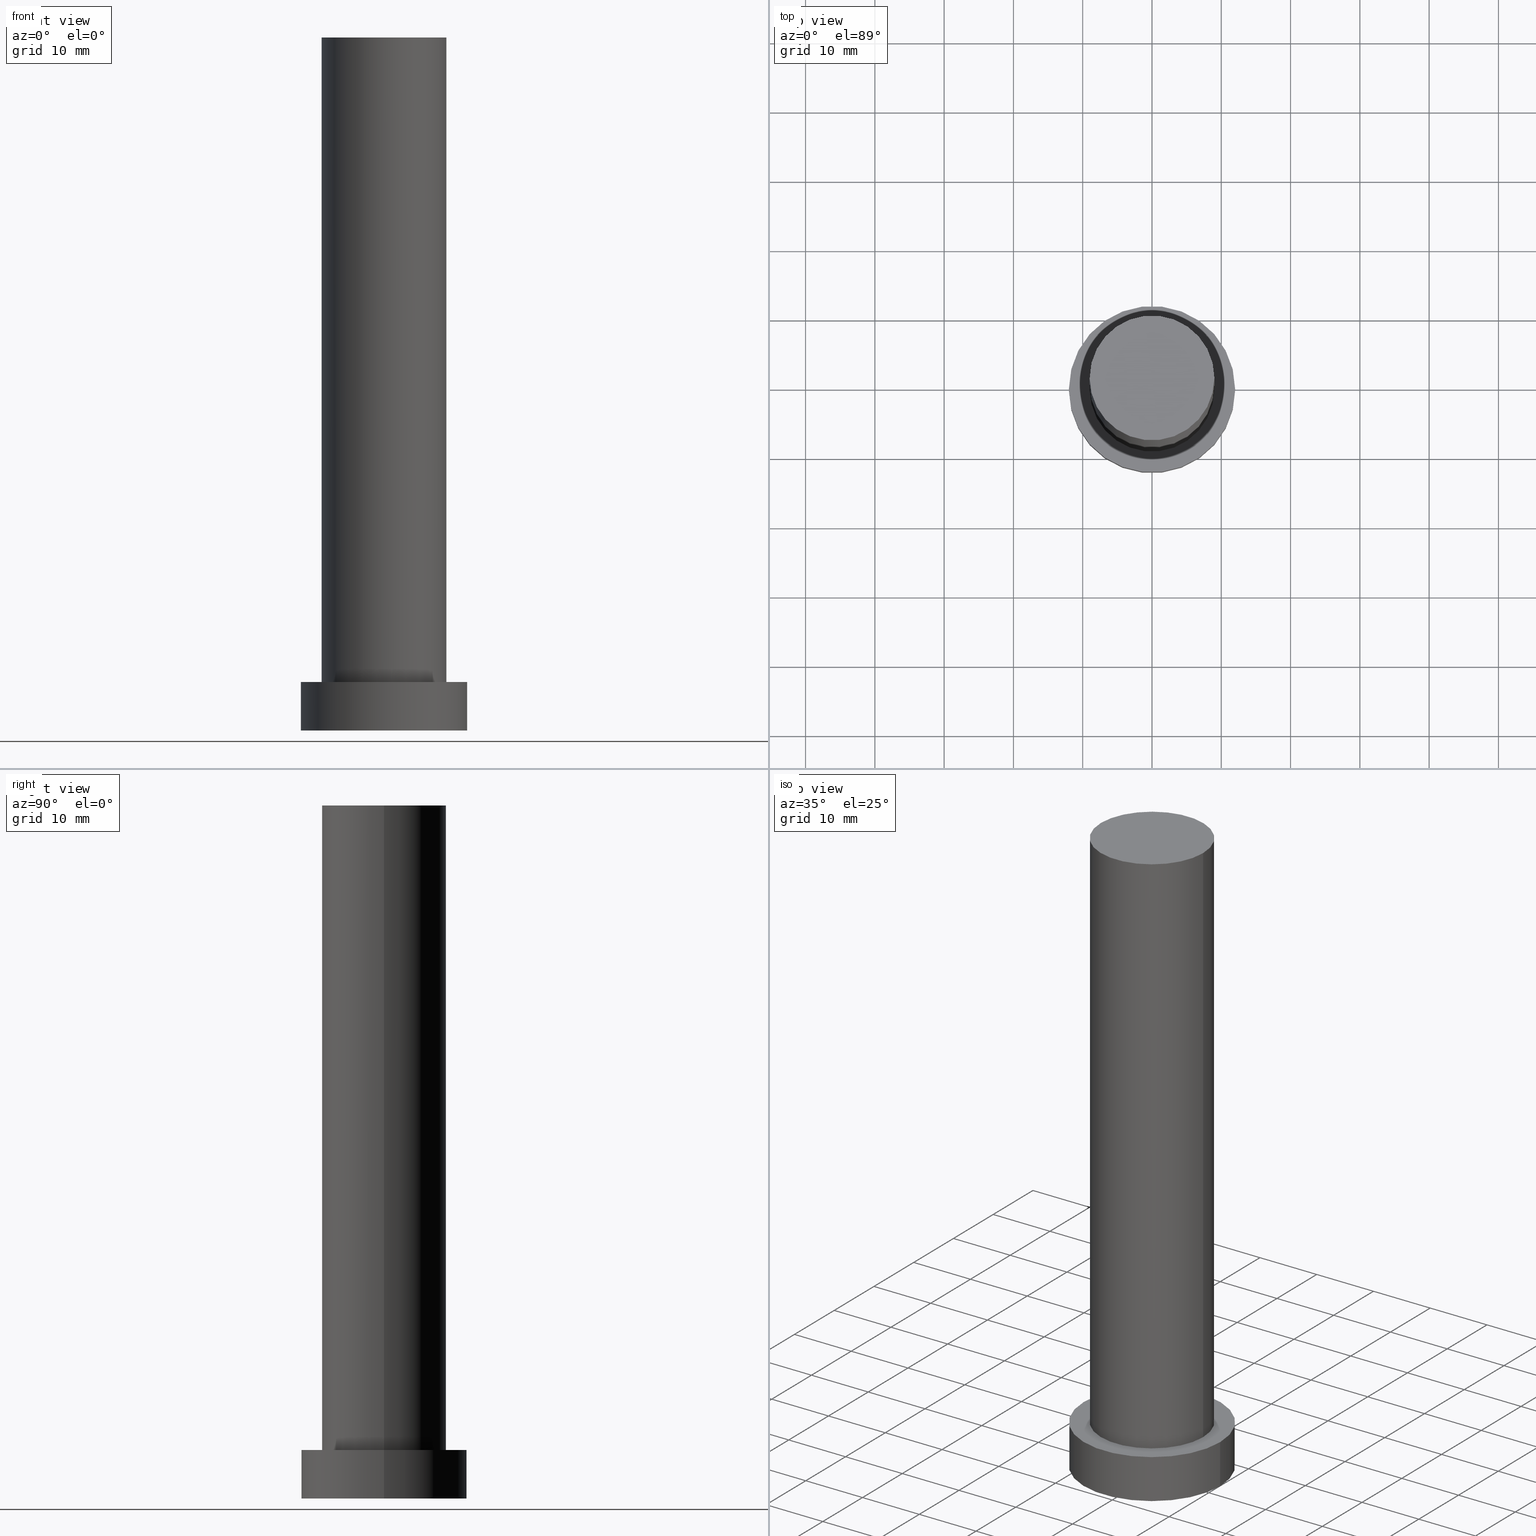
[diagram: canonical four-view strip — front | top / right | iso, engineering-drawing reading convention]
A machine part, canonical four-view strip (front | top / right | iso — engineering-drawing reading convention). The complete STEP part file that produces these views, byte-faithful:
ISO-10303-21;
HEADER;
FILE_DESCRIPTION (( 'STEP AP203' ),
    '1' );
FILE_NAME ('31d9.STEP',
    '2023-02-13T07:36:37',
    ( '' ),
    ( '' ),
    'SwSTEP 2.0',
    'SolidWorks 2019',
    '' );
FILE_SCHEMA (( 'CONFIG_CONTROL_DESIGN' ));
ENDSEC;

DATA;
#1 = APPROVAL_STATUS ( 'not_yet_approved' ) ;
#2 = CARTESIAN_POINT ( 'NONE',  ( 0.000000000000000000, 0.000000000000000000, 0.000000000000000000 ) ) ;
#3 = EDGE_CURVE ( 'NONE', #214, #246, #176, .T. ) ;
#4 = DIRECTION ( 'NONE',  ( -1.000000000000000000, 0.000000000000000000, 0.000000000000000000 ) ) ;
#5 = PERSON_AND_ORGANIZATION ( #134, #232 ) ;
#6 = CARTESIAN_POINT ( 'NONE',  ( -12.00000000000000178, 0.000000000000000000, 0.000000000000000000 ) ) ;
#7 = EDGE_LOOP ( 'NONE', ( #251, #196, #198, #211 ) ) ;
#8 = CIRCLE ( 'NONE', #39, 9.000000000000000000 ) ;
#9 = DIRECTION ( 'NONE',  ( 0.000000000000000000, 0.000000000000000000, 1.000000000000000000 ) ) ;
#10 = CYLINDRICAL_SURFACE ( 'NONE', #252, 12.00000000000000178 ) ;
#11 = SECURITY_CLASSIFICATION_LEVEL ( 'unclassified' ) ;
#12 = CC_DESIGN_PERSON_AND_ORGANIZATION_ASSIGNMENT ( #5, #148, ( #141 ) ) ;
#13 = CC_DESIGN_SECURITY_CLASSIFICATION ( #50, ( #141 ) ) ;
#14 = ORIENTED_EDGE ( 'NONE', *, *, #57, .F. ) ;
#15 = FACE_OUTER_BOUND ( 'NONE', #7, .T. ) ;
#16 = AXIS2_PLACEMENT_3D ( 'NONE', #164, #233, #145 ) ;
#17 = APPROVAL_PERSON_ORGANIZATION ( #43, #132, #21 ) ;
#18 = CARTESIAN_POINT ( 'NONE',  ( 0.000000000000000000, 0.000000000000000000, 100.0000000000000000 ) ) ;
#19 = PERSON_AND_ORGANIZATION ( #134, #232 ) ;
#20 = DATE_TIME_ROLE ( 'creation_date' ) ;
#21 = APPROVAL_ROLE ( '' ) ;
#22 = PLANE ( 'NONE',  #224 ) ;
#23 = ADVANCED_FACE ( 'NONE', ( #15 ), #236, .T. ) ;
#24 = CALENDAR_DATE ( 2023, 13, 2 ) ;
#25 = CARTESIAN_POINT ( 'NONE',  ( 0.000000000000000000, 0.000000000000000000, 0.000000000000000000 ) ) ;
#26 = PERSON_AND_ORGANIZATION ( #134, #232 ) ;
#27 =( LENGTH_UNIT ( ) NAMED_UNIT ( * ) SI_UNIT ( .MILLI., .METRE. ) );
#28 = DIRECTION ( 'NONE',  ( 0.000000000000000000, 0.000000000000000000, 1.000000000000000000 ) ) ;
#29 = VECTOR ( 'NONE', #121, 1000.000000000000000 ) ;
#30 = ORIENTED_EDGE ( 'NONE', *, *, #223, .T. ) ;
#31 = ADVANCED_FACE ( 'NONE', ( #248 ), #10, .T. ) ;
#32 = ORIENTED_EDGE ( 'NONE', *, *, #133, .F. ) ;
#33 = AXIS2_PLACEMENT_3D ( 'NONE', #108, #84, #172 ) ;
#34 = CARTESIAN_POINT ( 'NONE',  ( 0.000000000000000000, 0.000000000000000000, 7.000000000000000000 ) ) ;
#35 = CC_DESIGN_DATE_AND_TIME_ASSIGNMENT ( #94, #182, ( #50 ) ) ;
#36 = ORIENTED_EDGE ( 'NONE', *, *, #159, .T. ) ;
#37 = DIRECTION ( 'NONE',  ( 1.000000000000000000, 0.000000000000000000, 0.000000000000000000 ) ) ;
#38 = APPROVAL_PERSON_ORGANIZATION ( #19, #60, #185 ) ;
#39 = AXIS2_PLACEMENT_3D ( 'NONE', #241, #112, #184 ) ;
#40 = COORDINATED_UNIVERSAL_TIME_OFFSET ( 1, 0, .AHEAD. ) ;
#41 = PLANE ( 'NONE',  #102 ) ;
#42 = CC_DESIGN_PERSON_AND_ORGANIZATION_ASSIGNMENT ( #26, #146, ( #218 ) ) ;
#43 = PERSON_AND_ORGANIZATION ( #134, #232 ) ;
#44 = CARTESIAN_POINT ( 'NONE',  ( 0.000000000000000000, 0.000000000000000000, 7.000000000000000000 ) ) ;
#45 = APPROVAL_STATUS ( 'not_yet_approved' ) ;
#46 = DATE_AND_TIME ( #201, #226 ) ;
#47 = DIRECTION ( 'NONE',  ( 1.000000000000000000, 0.000000000000000000, -0.000000000000000000 ) ) ;
#48 = CARTESIAN_POINT ( 'NONE',  ( 0.000000000000000000, 0.000000000000000000, 100.0000000000000000 ) ) ;
#49 = ADVANCED_FACE ( 'NONE', ( #144 ), #175, .T. ) ;
#50 = SECURITY_CLASSIFICATION ( '', '', #11 ) ;
#51 = EDGE_CURVE ( 'NONE', #217, #214, #92, .T. ) ;
#52 = APPLICATION_PROTOCOL_DEFINITION ( 'international standard', 'config_control_design', 1994, #88 ) ;
#53 = PRODUCT_DEFINITION_SHAPE ( 'NONE', 'NONE',  #186 ) ;
#54 = ORIENTED_EDGE ( 'NONE', *, *, #93, .T. ) ;
#55 = VERTEX_POINT ( 'NONE', #59 ) ;
#56 = ORIENTED_EDGE ( 'NONE', *, *, #3, .T. ) ;
#57 = EDGE_CURVE ( 'NONE', #214, #217, #8, .T. ) ;
#58 = CC_DESIGN_PERSON_AND_ORGANIZATION_ASSIGNMENT ( #213, #122, ( #141 ) ) ;
#59 = CARTESIAN_POINT ( 'NONE',  ( 12.00000000000000178, 1.469576158976824144E-15, 7.000000000000000000 ) ) ;
#60 = APPROVAL ( #221, 'NEUR�EN�' ) ;
#61 = PERSON_AND_ORGANIZATION ( #134, #232 ) ;
#62 = CIRCLE ( 'NONE', #16, 12.00000000000000178 ) ;
#63 = EDGE_CURVE ( 'NONE', #55, #169, #77, .T. ) ;
#64 = APPROVAL_PERSON_ORGANIZATION ( #61, #173, #79 ) ;
#65 = DIRECTION ( 'NONE',  ( 0.000000000000000000, 0.000000000000000000, 1.000000000000000000 ) ) ;
#66 = COORDINATED_UNIVERSAL_TIME_OFFSET ( 1, 0, .AHEAD. ) ;
#67 = DIRECTION ( 'NONE',  ( 1.000000000000000000, 0.000000000000000000, 0.000000000000000000 ) ) ;
#68 = CARTESIAN_POINT ( 'NONE',  ( -9.000000000000000000, 0.000000000000000000, 100.0000000000000000 ) ) ;
#69 = ORIENTED_EDGE ( 'NONE', *, *, #235, .F. ) ;
#70 = DIRECTION ( 'NONE',  ( 0.000000000000000000, 0.000000000000000000, 1.000000000000000000 ) ) ;
#71 = DIRECTION ( 'NONE',  ( -1.000000000000000000, 0.000000000000000000, 0.000000000000000000 ) ) ;
#72 = VERTEX_POINT ( 'NONE', #153 ) ;
#73 = ADVANCED_FACE ( 'NONE', ( #254 ), #156, .T. ) ;
#74 = ORIENTED_EDGE ( 'NONE', *, *, #51, .T. ) ;
#75 = VECTOR ( 'NONE', #96, 1000.000000000000000 ) ;
#76 = CLOSED_SHELL ( 'NONE', ( #23, #31, #49, #174, #143, #73, #91 ) ) ;
#77 = LINE ( 'NONE', #137, #75 ) ;
#78 = DIRECTION ( 'NONE',  ( -0.000000000000000000, -0.000000000000000000, -1.000000000000000000 ) ) ;
#79 = APPROVAL_ROLE ( '' ) ;
#80 = DIRECTION ( 'NONE',  ( 0.000000000000000000, 0.000000000000000000, 1.000000000000000000 ) ) ;
#81 = VERTEX_POINT ( 'NONE', #161 ) ;
#82 = CARTESIAN_POINT ( 'NONE',  ( -9.000000000000000000, 0.000000000000000000, 7.000000000000000000 ) ) ;
#83 = FACE_BOUND ( 'NONE', #152, .T. ) ;
#84 = DIRECTION ( 'NONE',  ( 0.000000000000000000, 0.000000000000000000, 1.000000000000000000 ) ) ;
#85 = AXIS2_PLACEMENT_3D ( 'NONE', #181, #135, #37 ) ;
#86 = CIRCLE ( 'NONE', #157, 12.00000000000000178 ) ;
#87 = DIRECTION ( 'NONE',  ( -0.000000000000000000, -0.000000000000000000, -1.000000000000000000 ) ) ;
#88 = APPLICATION_CONTEXT ( 'configuration controlled 3d designs of mechanical parts and assemblies' ) ;
#89 = EDGE_LOOP ( 'NONE', ( #177, #14, #56, #36 ) ) ;
#90 = CARTESIAN_POINT ( 'NONE',  ( 0.000000000000000000, 0.000000000000000000, 7.000000000000000000 ) ) ;
#91 = ADVANCED_FACE ( 'NONE', ( #167 ), #41, .T. ) ;
#92 = CIRCLE ( 'NONE', #85, 9.000000000000000000 ) ;
#93 = EDGE_CURVE ( 'NONE', #55, #81, #250, .T. ) ;
#94 = DATE_AND_TIME ( #242, #150 ) ;
#95 = DATE_AND_TIME ( #24, #162 ) ;
#96 = DIRECTION ( 'NONE',  ( -0.000000000000000000, -0.000000000000000000, -1.000000000000000000 ) ) ;
#97 = FACE_OUTER_BOUND ( 'NONE', #130, .T. ) ;
#98 = DIRECTION ( 'NONE',  ( 1.000000000000000000, 0.000000000000000000, 0.000000000000000000 ) ) ;
#99 = DATE_AND_TIME ( #207, #136 ) ;
#100 = CARTESIAN_POINT ( 'NONE',  ( 9.000000000000000000, 1.102182119232617517E-15, 100.0000000000000000 ) ) ;
#101 = DIRECTION ( 'NONE',  ( 0.000000000000000000, 0.000000000000000000, 1.000000000000000000 ) ) ;
#102 = AXIS2_PLACEMENT_3D ( 'NONE', #117, #80, #171 ) ;
#103 = DIRECTION ( 'NONE',  ( 1.000000000000000000, 0.000000000000000000, -0.000000000000000000 ) ) ;
#104 = DIRECTION ( 'NONE',  ( -0.000000000000000000, -0.000000000000000000, -1.000000000000000000 ) ) ;
#105 = CIRCLE ( 'NONE', #180, 9.000000000000000000 ) ;
#106 = EDGE_CURVE ( 'NONE', #217, #72, #194, .T. ) ;
#107 = CC_DESIGN_APPROVAL ( #132, ( #186 ) ) ;
#108 = CARTESIAN_POINT ( 'NONE',  ( 0.000000000000000000, 0.000000000000000000, 0.000000000000000000 ) ) ;
#109 = EDGE_LOOP ( 'NONE', ( #208, #215, #30, #32 ) ) ;
#110 = ORIENTED_EDGE ( 'NONE', *, *, #223, .F. ) ;
#111 = ORIENTED_EDGE ( 'NONE', *, *, #57, .T. ) ;
#112 = DIRECTION ( 'NONE',  ( 0.000000000000000000, 0.000000000000000000, 1.000000000000000000 ) ) ;
#113 = AXIS2_PLACEMENT_3D ( 'NONE', #34, #126, #71 ) ;
#114 = CIRCLE ( 'NONE', #205, 9.000000000000000000 ) ;
#115 = APPLICATION_PROTOCOL_DEFINITION ( 'international standard', 'config_control_design', 1994, #129 ) ;
#116 = PERSON_AND_ORGANIZATION_ROLE ( 'creator' ) ;
#117 = CARTESIAN_POINT ( 'NONE',  ( 0.000000000000000000, 0.000000000000000000, 100.0000000000000000 ) ) ;
#118 = DIRECTION ( 'NONE',  ( 1.000000000000000000, 0.000000000000000000, 0.000000000000000000 ) ) ;
#119 = AXIS2_PLACEMENT_3D ( 'NONE', #187, #9, #103 ) ;
#120 = APPROVAL_DATE_TIME ( #46, #132 ) ;
#121 = DIRECTION ( 'NONE',  ( -0.000000000000000000, -0.000000000000000000, -1.000000000000000000 ) ) ;
#122 = PERSON_AND_ORGANIZATION_ROLE ( 'design_supplier' ) ;
#123 = DIRECTION ( 'NONE',  ( 1.000000000000000000, 0.000000000000000000, 0.000000000000000000 ) ) ;
#124 = ORIENTED_EDGE ( 'NONE', *, *, #63, .F. ) ;
#125 = EDGE_CURVE ( 'NONE', #81, #55, #212, .T. ) ;
#126 = DIRECTION ( 'NONE',  ( -0.000000000000000000, -0.000000000000000000, -1.000000000000000000 ) ) ;
#127 = MECHANICAL_CONTEXT ( 'NONE', #88, 'mechanical' ) ;
#128 = ORIENTED_EDGE ( 'NONE', *, *, #235, .T. ) ;
#129 = APPLICATION_CONTEXT ( 'configuration controlled 3d designs of mechanical parts and assemblies' ) ;
#130 = EDGE_LOOP ( 'NONE', ( #69, #110 ) ) ;
#131 = EDGE_LOOP ( 'NONE', ( #197, #54 ) ) ;
#132 = APPROVAL ( #1, 'NEUR�EN�' ) ;
#133 = EDGE_CURVE ( 'NONE', #81, #237, #203, .T. ) ;
#134 = PERSON ( 'NEUR�EN�', 'NEUR�EN�', 'NEUR�EN�', ('NEUR�EN�'), ('NEUR�EN�'), ('NEUR�EN�') ) ;
#135 = DIRECTION ( 'NONE',  ( 0.000000000000000000, 0.000000000000000000, 1.000000000000000000 ) ) ;
#136 = LOCAL_TIME ( 8, 36, 37.00000000000000000, #66 ) ;
#137 = CARTESIAN_POINT ( 'NONE',  ( 12.00000000000000178, 1.469576158976824144E-15, 7.000000000000000000 ) ) ;
#138 = AXIS2_PLACEMENT_3D ( 'NONE', #18, #78, #4 ) ;
#139 = AXIS2_PLACEMENT_3D ( 'NONE', #245, #70, #123 ) ;
#140 = FACE_OUTER_BOUND ( 'NONE', #131, .T. ) ;
#141 = PRODUCT_DEFINITION_FORMATION_WITH_SPECIFIED_SOURCE ( 'LIBOVOLN�', '', #218, .NOT_KNOWN. ) ;
#142 = DIRECTION ( 'NONE',  ( 0.000000000000000000, 0.000000000000000000, 1.000000000000000000 ) ) ;
#143 = ADVANCED_FACE ( 'NONE', ( #97 ), #22, .F. ) ;
#144 = FACE_OUTER_BOUND ( 'NONE', #151, .T. ) ;
#145 = DIRECTION ( 'NONE',  ( 1.000000000000000000, 0.000000000000000000, 0.000000000000000000 ) ) ;
#146 = PERSON_AND_ORGANIZATION_ROLE ( 'design_owner' ) ;
#147 = EDGE_LOOP ( 'NONE', ( #111, #74 ) ) ;
#148 = PERSON_AND_ORGANIZATION_ROLE ( 'creator' ) ;
#149 = CARTESIAN_POINT ( 'NONE',  ( 0.000000000000000000, 0.000000000000000000, 7.000000000000000000 ) ) ;
#150 = LOCAL_TIME ( 8, 36, 37.00000000000000000, #255 ) ;
#151 = EDGE_LOOP ( 'NONE', ( #124, #231, #193, #128 ) ) ;
#152 = EDGE_LOOP ( 'NONE', ( #178, #239 ) ) ;
#153 = CARTESIAN_POINT ( 'NONE',  ( 9.000000000000000000, 1.102182119232617517E-15, 7.000000000000000000 ) ) ;
#154 = DIRECTION ( 'NONE',  ( -1.000000000000000000, 0.000000000000000000, 0.000000000000000000 ) ) ;
#155 = SHAPE_DEFINITION_REPRESENTATION ( #53, #222 ) ;
#156 = CYLINDRICAL_SURFACE ( 'NONE', #138, 9.000000000000000000 ) ;
#157 = AXIS2_PLACEMENT_3D ( 'NONE', #2, #142, #230 ) ;
#158 = UNCERTAINTY_MEASURE_WITH_UNIT (LENGTH_MEASURE( 1.000000000000000082E-05 ), #27, 'distance_accuracy_value', 'NONE');
#159 = EDGE_CURVE ( 'NONE', #246, #72, #114, .T. ) ;
#160 = PERSON_AND_ORGANIZATION_ROLE ( 'classification_officer' ) ;
#161 = CARTESIAN_POINT ( 'NONE',  ( -12.00000000000000178, 0.000000000000000000, 7.000000000000000000 ) ) ;
#162 = LOCAL_TIME ( 8, 36, 37.00000000000000000, #229 ) ;
#163 = PERSON_AND_ORGANIZATION ( #134, #232 ) ;
#164 = CARTESIAN_POINT ( 'NONE',  ( 0.000000000000000000, 0.000000000000000000, 0.000000000000000000 ) ) ;
#165 =( NAMED_UNIT ( * ) SI_UNIT ( $, .STERADIAN. ) SOLID_ANGLE_UNIT ( ) );
#166 = DIRECTION ( 'NONE',  ( -0.000000000000000000, -0.000000000000000000, -1.000000000000000000 ) ) ;
#167 = FACE_OUTER_BOUND ( 'NONE', #147, .T. ) ;
#168 = AXIS2_PLACEMENT_3D ( 'NONE', #149, #204, #118 ) ;
#169 = VERTEX_POINT ( 'NONE', #228 ) ;
#170 = PERSON_AND_ORGANIZATION ( #134, #232 ) ;
#171 = DIRECTION ( 'NONE',  ( 1.000000000000000000, 0.000000000000000000, -0.000000000000000000 ) ) ;
#172 = DIRECTION ( 'NONE',  ( 1.000000000000000000, 0.000000000000000000, 0.000000000000000000 ) ) ;
#173 = APPROVAL ( #45, 'NEUR�EN�' ) ;
#174 = ADVANCED_FACE ( 'NONE', ( #83, #140 ), #188, .T. ) ;
#175 = CYLINDRICAL_SURFACE ( 'NONE', #113, 12.00000000000000178 ) ;
#176 = LINE ( 'NONE', #249, #247 ) ;
#177 = ORIENTED_EDGE ( 'NONE', *, *, #106, .F. ) ;
#178 = ORIENTED_EDGE ( 'NONE', *, *, #159, .F. ) ;
#179 = AXIS2_PLACEMENT_3D ( 'NONE', #48, #166, #195 ) ;
#180 = AXIS2_PLACEMENT_3D ( 'NONE', #44, #28, #98 ) ;
#181 = CARTESIAN_POINT ( 'NONE',  ( 0.000000000000000000, 0.000000000000000000, 100.0000000000000000 ) ) ;
#182 = DATE_TIME_ROLE ( 'classification_date' ) ;
#183 = LOCAL_TIME ( 8, 36, 37.00000000000000000, #191 ) ;
#184 = DIRECTION ( 'NONE',  ( 1.000000000000000000, 0.000000000000000000, 0.000000000000000000 ) ) ;
#185 = APPROVAL_ROLE ( '' ) ;
#186 = PRODUCT_DEFINITION ( 'NEZN�M�', '', #141, #200 ) ;
#187 = CARTESIAN_POINT ( 'NONE',  ( 0.000000000000000000, 0.000000000000000000, 7.000000000000000000 ) ) ;
#188 = PLANE ( 'NONE',  #119 ) ;
#189 = CC_DESIGN_APPROVAL ( #60, ( #50 ) ) ;
#190 = CARTESIAN_POINT ( 'NONE',  ( 0.000000000000000000, 0.000000000000000000, 7.000000000000000000 ) ) ;
#191 = COORDINATED_UNIVERSAL_TIME_OFFSET ( 1, 0, .AHEAD. ) ;
#192 = CARTESIAN_POINT ( 'NONE',  ( 9.000000000000000000, 1.102182119232617517E-15, 100.0000000000000000 ) ) ;
#193 = ORIENTED_EDGE ( 'NONE', *, *, #133, .T. ) ;
#194 = LINE ( 'NONE', #100, #29 ) ;
#195 = DIRECTION ( 'NONE',  ( -1.000000000000000000, 0.000000000000000000, 0.000000000000000000 ) ) ;
#196 = ORIENTED_EDGE ( 'NONE', *, *, #106, .T. ) ;
#197 = ORIENTED_EDGE ( 'NONE', *, *, #125, .T. ) ;
#198 = ORIENTED_EDGE ( 'NONE', *, *, #234, .T. ) ;
#199 = PRODUCT_RELATED_PRODUCT_CATEGORY ( 'detail', '', ( #218 ) ) ;
#200 = DESIGN_CONTEXT ( 'detailed design', #129, 'design' ) ;
#201 = CALENDAR_DATE ( 2023, 13, 2 ) ;
#202 = CC_DESIGN_PERSON_AND_ORGANIZATION_ASSIGNMENT ( #170, #160, ( #50 ) ) ;
#203 = LINE ( 'NONE', #210, #238 ) ;
#204 = DIRECTION ( 'NONE',  ( 0.000000000000000000, 0.000000000000000000, 1.000000000000000000 ) ) ;
#205 = AXIS2_PLACEMENT_3D ( 'NONE', #190, #65, #67 ) ;
#206 =( NAMED_UNIT ( * ) PLANE_ANGLE_UNIT ( ) SI_UNIT ( $, .RADIAN. ) );
#207 = CALENDAR_DATE ( 2023, 13, 2 ) ;
#208 = ORIENTED_EDGE ( 'NONE', *, *, #93, .F. ) ;
#209 = CALENDAR_DATE ( 2023, 13, 2 ) ;
#210 = CARTESIAN_POINT ( 'NONE',  ( -12.00000000000000178, 0.000000000000000000, 7.000000000000000000 ) ) ;
#211 = ORIENTED_EDGE ( 'NONE', *, *, #3, .F. ) ;
#212 = CIRCLE ( 'NONE', #168, 12.00000000000000178 ) ;
#213 = PERSON_AND_ORGANIZATION ( #134, #232 ) ;
#214 = VERTEX_POINT ( 'NONE', #68 ) ;
#215 = ORIENTED_EDGE ( 'NONE', *, *, #63, .T. ) ;
#216 = MANIFOLD_SOLID_BREP ( 'P�idat vysunut�m3', #76 ) ;
#217 = VERTEX_POINT ( 'NONE', #192 ) ;
#218 = PRODUCT ( '31d9', '31d9', '', ( #127 ) ) ;
#219 = CC_DESIGN_PERSON_AND_ORGANIZATION_ASSIGNMENT ( #163, #116, ( #186 ) ) ;
#220 = DATE_AND_TIME ( #209, #183 ) ;
#221 = APPROVAL_STATUS ( 'not_yet_approved' ) ;
#222 = ADVANCED_BREP_SHAPE_REPRESENTATION ( '31d9', ( #216, #33 ), #253 ) ;
#223 = EDGE_CURVE ( 'NONE', #169, #237, #86, .T. ) ;
#224 = AXIS2_PLACEMENT_3D ( 'NONE', #25, #101, #47 ) ;
#225 = APPROVAL_DATE_TIME ( #220, #60 ) ;
#226 = LOCAL_TIME ( 8, 36, 37.00000000000000000, #40 ) ;
#227 = APPROVAL_DATE_TIME ( #95, #173 ) ;
#228 = CARTESIAN_POINT ( 'NONE',  ( 12.00000000000000178, 1.469576158976824144E-15, 0.000000000000000000 ) ) ;
#229 = COORDINATED_UNIVERSAL_TIME_OFFSET ( 1, 0, .AHEAD. ) ;
#230 = DIRECTION ( 'NONE',  ( 1.000000000000000000, 0.000000000000000000, 0.000000000000000000 ) ) ;
#231 = ORIENTED_EDGE ( 'NONE', *, *, #125, .F. ) ;
#232 = ORGANIZATION ( 'NEUR�EN�', 'NEUR�EN�', '' ) ;
#233 = DIRECTION ( 'NONE',  ( 0.000000000000000000, 0.000000000000000000, 1.000000000000000000 ) ) ;
#234 = EDGE_CURVE ( 'NONE', #72, #246, #105, .T. ) ;
#235 = EDGE_CURVE ( 'NONE', #237, #169, #62, .T. ) ;
#236 = CYLINDRICAL_SURFACE ( 'NONE', #179, 9.000000000000000000 ) ;
#237 = VERTEX_POINT ( 'NONE', #6 ) ;
#238 = VECTOR ( 'NONE', #244, 1000.000000000000000 ) ;
#239 = ORIENTED_EDGE ( 'NONE', *, *, #234, .F. ) ;
#240 = CC_DESIGN_APPROVAL ( #173, ( #141 ) ) ;
#241 = CARTESIAN_POINT ( 'NONE',  ( 0.000000000000000000, 0.000000000000000000, 100.0000000000000000 ) ) ;
#242 = CALENDAR_DATE ( 2023, 13, 2 ) ;
#243 = CC_DESIGN_DATE_AND_TIME_ASSIGNMENT ( #99, #20, ( #186 ) ) ;
#244 = DIRECTION ( 'NONE',  ( -0.000000000000000000, -0.000000000000000000, -1.000000000000000000 ) ) ;
#245 = CARTESIAN_POINT ( 'NONE',  ( 0.000000000000000000, 0.000000000000000000, 7.000000000000000000 ) ) ;
#246 = VERTEX_POINT ( 'NONE', #82 ) ;
#247 = VECTOR ( 'NONE', #104, 1000.000000000000000 ) ;
#248 = FACE_OUTER_BOUND ( 'NONE', #109, .T. ) ;
#249 = CARTESIAN_POINT ( 'NONE',  ( -9.000000000000000000, 0.000000000000000000, 100.0000000000000000 ) ) ;
#250 = CIRCLE ( 'NONE', #139, 12.00000000000000178 ) ;
#251 = ORIENTED_EDGE ( 'NONE', *, *, #51, .F. ) ;
#252 = AXIS2_PLACEMENT_3D ( 'NONE', #90, #87, #154 ) ;
#253 =( GEOMETRIC_REPRESENTATION_CONTEXT ( 3 ) GLOBAL_UNCERTAINTY_ASSIGNED_CONTEXT ( ( #158 ) ) GLOBAL_UNIT_ASSIGNED_CONTEXT ( ( #27, #206, #165 ) ) REPRESENTATION_CONTEXT ( 'NONE', 'WORKASPACE' ) );
#254 = FACE_OUTER_BOUND ( 'NONE', #89, .T. ) ;
#255 = COORDINATED_UNIVERSAL_TIME_OFFSET ( 1, 0, .AHEAD. ) ;
ENDSEC;
END-ISO-10303-21;
